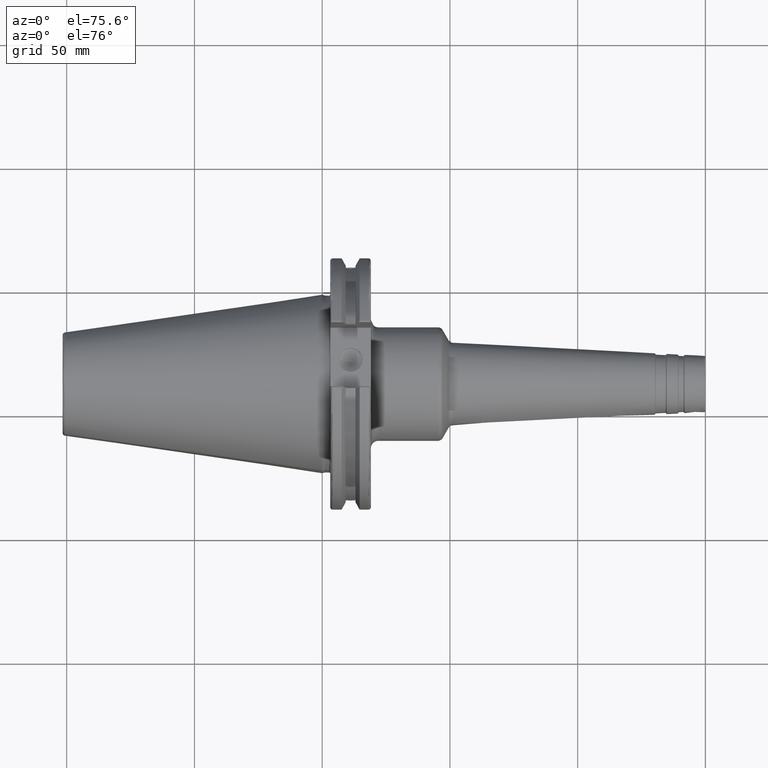
[diagram: clean part render]
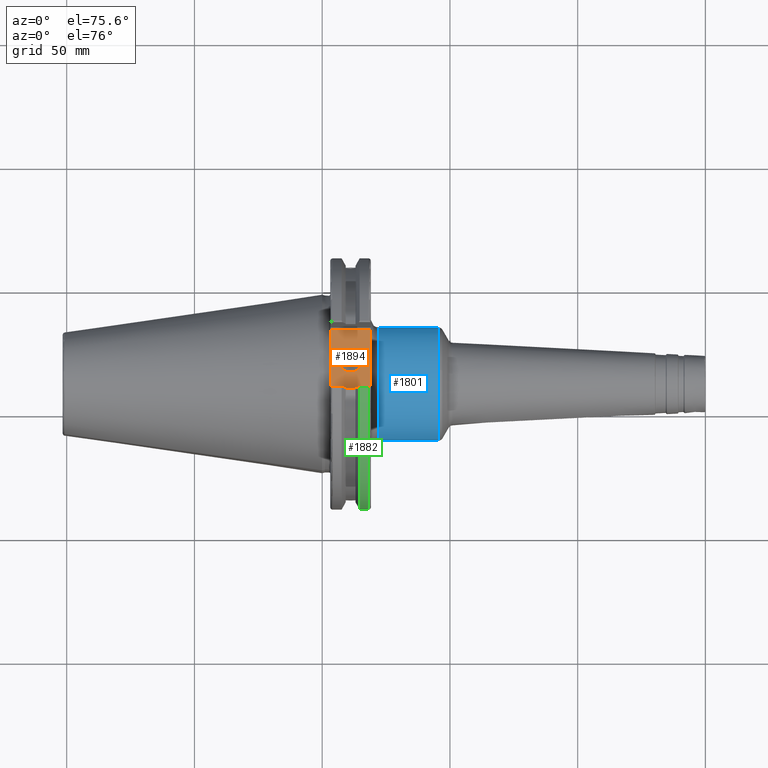
[diagram: same view with three faces highlighted in distinct colors, each labeled with its STEP entity id]
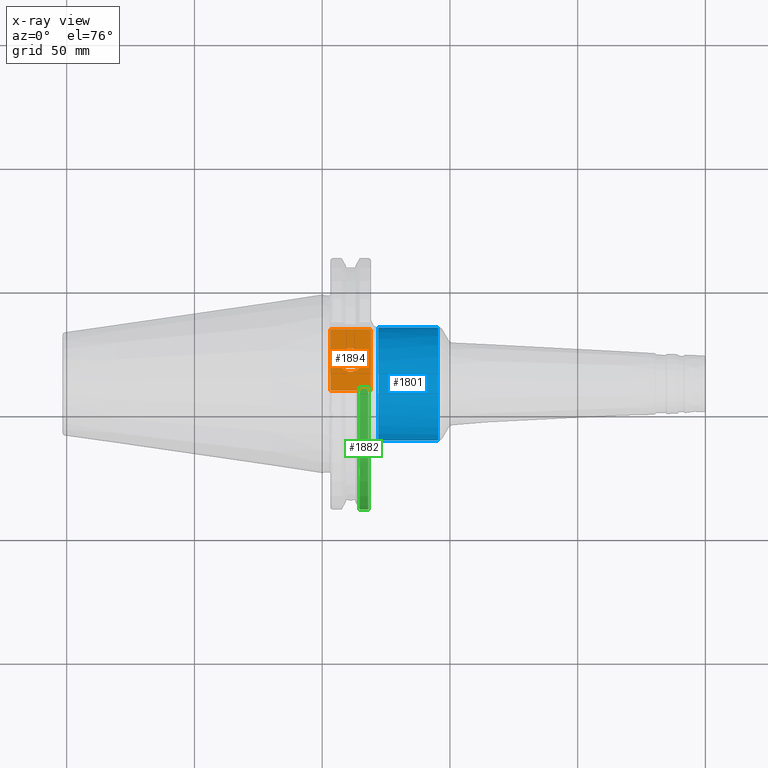
[diagram: x-ray of the same camera — body ghosted, the three highlighted faces saturated]
A machine part, auxiliary view with three faces highlighted in distinct colors.
The next image is the same camera in x-ray (body ghosted, the three faces saturated) — at least one of them is partly hidden behind the body in this view.
Their STEP definitions:

[orange] entity #1894 — the highlighted planar face has unit normal (0, 0, 1).
#89=FACE_BOUND('',#607,.T.);
#124=PLANE('',#2144);
#161=LINE('',#2775,#264);
#214=LINE('',#3481,#317);
#242=LINE('',#3710,#345);
#244=LINE('',#3713,#347);
#264=VECTOR('',#2213,10.);
#317=VECTOR('',#2546,10.);
#345=VECTOR('',#2640,10.);
#347=VECTOR('',#2644,10.);
#482=FACE_OUTER_BOUND('',#606,.T.);
#606=EDGE_LOOP('',(#1740,#1741,#1742,#1743));
#607=EDGE_LOOP('',(#1744));
#732=CIRCLE('',#2136,4.7625);
#757=VERTEX_POINT('',#2772);
#758=VERTEX_POINT('',#2774);
#880=VERTEX_POINT('',#3478);
#881=VERTEX_POINT('',#3480);
#927=VERTEX_POINT('',#3749);
#952=EDGE_CURVE('',#757,#758,#161,.T.);
#1120=EDGE_CURVE('',#880,#881,#214,.T.);
#1183=EDGE_CURVE('',#758,#880,#242,.T.);
#1185=EDGE_CURVE('',#881,#757,#244,.T.);
#1200=EDGE_CURVE('',#927,#927,#732,.T.);
#1740=ORIENTED_EDGE('',*,*,#1183,.F.);
#1741=ORIENTED_EDGE('',*,*,#952,.F.);
#1742=ORIENTED_EDGE('',*,*,#1185,.F.);
#1743=ORIENTED_EDGE('',*,*,#1120,.F.);
#1744=ORIENTED_EDGE('',*,*,#1200,.T.);
#1894=ADVANCED_FACE('',(#482,#89),#124,.T.);
#2136=AXIS2_PLACEMENT_3D('',#3750,#2679,#2680);
#2144=AXIS2_PLACEMENT_3D('',#3759,#2696,#2697);
#2213=DIRECTION('',(0.,-1.,0.));
#2546=DIRECTION('',(0.,1.,0.));
#2640=DIRECTION('',(-1.,1.31581988103722E-16,0.));
#2644=DIRECTION('',(1.,0.,0.));
#2679=DIRECTION('center_axis',(0.,0.,-1.));
#2680=DIRECTION('ref_axis',(1.,0.,0.));
#2696=DIRECTION('center_axis',(0.,0.,1.));
#2697=DIRECTION('ref_axis',(1.,0.,0.));
#2772=CARTESIAN_POINT('',(19.05,12.45,37.719));
#2774=CARTESIAN_POINT('',(19.05,-12.45,37.719));
#2775=CARTESIAN_POINT('',(19.05,0.,37.719));
#3478=CARTESIAN_POINT('',(3.175,-12.45,37.719));
#3480=CARTESIAN_POINT('',(3.175,12.45,37.719));
#3481=CARTESIAN_POINT('',(3.175,24.60625,37.719));
#3710=CARTESIAN_POINT('',(10.63125,-12.45,37.719));
#3713=CARTESIAN_POINT('',(19.06875,12.45,37.719));
#3749=CARTESIAN_POINT('',(6.3716,-5.83238038093927E-16,37.719));
#3750=CARTESIAN_POINT('Origin',(11.1341,0.,37.719));
#3759=CARTESIAN_POINT('Origin',(18.0875,0.,37.719));

[blue] entity #1801 — the highlighted cylindrical surface (bore or boss wall) has radius 22.25 mm, axis along (1, 0, 0).
#128=CYLINDRICAL_SURFACE('',#1942,22.25);
#158=LINE('',#2758,#261);
#261=VECTOR('',#2196,22.25);
#389=FACE_OUTER_BOUND('',#495,.T.);
#495=EDGE_LOOP('',(#1237,#1238,#1239,#1240,#1241,#1242));
#627=CIRCLE('',#1940,22.25);
#628=CIRCLE('',#1941,22.25);
#629=CIRCLE('',#1943,22.25);
#630=CIRCLE('',#1944,22.25);
#749=VERTEX_POINT('',#2751);
#750=VERTEX_POINT('',#2753);
#751=VERTEX_POINT('',#2757);
#752=VERTEX_POINT('',#2759);
#942=EDGE_CURVE('',#749,#750,#627,.T.);
#943=EDGE_CURVE('',#750,#749,#628,.T.);
#944=EDGE_CURVE('',#750,#751,#158,.T.);
#945=EDGE_CURVE('',#752,#751,#629,.T.);
#946=EDGE_CURVE('',#751,#752,#630,.T.);
#1237=ORIENTED_EDGE('',*,*,#943,.F.);
#1238=ORIENTED_EDGE('',*,*,#944,.T.);
#1239=ORIENTED_EDGE('',*,*,#945,.F.);
#1240=ORIENTED_EDGE('',*,*,#946,.F.);
#1241=ORIENTED_EDGE('',*,*,#944,.F.);
#1242=ORIENTED_EDGE('',*,*,#942,.F.);
#1801=ADVANCED_FACE('',(#389),#128,.T.);
#1940=AXIS2_PLACEMENT_3D('',#2754,#2190,#2191);
#1941=AXIS2_PLACEMENT_3D('',#2755,#2192,#2193);
#1942=AXIS2_PLACEMENT_3D('',#2756,#2194,#2195);
#1943=AXIS2_PLACEMENT_3D('',#2760,#2197,#2198);
#1944=AXIS2_PLACEMENT_3D('',#2761,#2199,#2200);
#2190=DIRECTION('center_axis',(1.,0.,0.));
#2191=DIRECTION('ref_axis',(0.,-1.,1.83697019872103E-16));
#2192=DIRECTION('center_axis',(1.,0.,0.));
#2193=DIRECTION('ref_axis',(0.,-1.,1.83697019872103E-16));
#2194=DIRECTION('center_axis',(1.,0.,0.));
#2195=DIRECTION('ref_axis',(0.,1.,0.));
#2196=DIRECTION('',(-1.,0.,0.));
#2197=DIRECTION('center_axis',(-1.,0.,0.));
#2198=DIRECTION('ref_axis',(0.,-1.,-1.22464679914735E-16));
#2199=DIRECTION('center_axis',(-1.,0.,0.));
#2200=DIRECTION('ref_axis',(0.,-1.,-1.22464679914735E-16));
#2751=CARTESIAN_POINT('',(45.3758734809069,-2.72483912810286E-15,22.25));
#2753=CARTESIAN_POINT('',(45.3758734809069,-22.25,-2.72483912810286E-15));
#2754=CARTESIAN_POINT('Origin',(45.3758734809069,0.,0.));
#2755=CARTESIAN_POINT('Origin',(45.3758734809069,0.,0.));
#2756=CARTESIAN_POINT('Origin',(32.7902870096431,0.,0.));
#2757=CARTESIAN_POINT('',(22.05,-22.25,-2.72483912810286E-15));
#2758=CARTESIAN_POINT('',(32.7902870096431,-22.25,-2.72483912810286E-15));
#2759=CARTESIAN_POINT('',(22.05,-2.72483912810286E-15,-22.25));
#2760=CARTESIAN_POINT('Origin',(22.05,0.,0.));
#2761=CARTESIAN_POINT('Origin',(22.05,0.,0.));

[green] entity #1882 — the highlighted cylindrical surface (partial cylindrical patch) has radius 49.2125 mm, axis along (1, 0, 0).
#149=CYLINDRICAL_SURFACE('',#2126,49.2125);
#250=LINE('',#3728,#353);
#251=LINE('',#3730,#354);
#353=VECTOR('',#2654,10.);
#354=VECTOR('',#2657,10.);
#470=FACE_OUTER_BOUND('',#594,.T.);
#594=EDGE_LOOP('',(#1688,#1689,#1690,#1691));
#692=CIRCLE('',#2043,49.2125);
#720=CIRCLE('',#2098,49.2125);
#834=VERTEX_POINT('',#3196);
#835=VERTEX_POINT('',#3200);
#899=VERTEX_POINT('',#3571);
#900=VERTEX_POINT('',#3580);
#1057=EDGE_CURVE('',#835,#834,#692,.T.);
#1146=EDGE_CURVE('',#899,#900,#720,.T.);
#1192=EDGE_CURVE('',#900,#834,#250,.T.);
#1193=EDGE_CURVE('',#835,#899,#251,.T.);
#1688=ORIENTED_EDGE('',*,*,#1146,.F.);
#1689=ORIENTED_EDGE('',*,*,#1193,.F.);
#1690=ORIENTED_EDGE('',*,*,#1057,.T.);
#1691=ORIENTED_EDGE('',*,*,#1192,.F.);
#1882=ADVANCED_FACE('',(#470),#149,.T.);
#2043=AXIS2_PLACEMENT_3D('',#3201,#2430,#2431);
#2098=AXIS2_PLACEMENT_3D('',#3581,#2575,#2576);
#2126=AXIS2_PLACEMENT_3D('',#3729,#2655,#2656);
#2430=DIRECTION('center_axis',(1.,0.,0.));
#2431=DIRECTION('ref_axis',(0.,0.,-1.));
#2575=DIRECTION('center_axis',(1.,0.,0.));
#2576=DIRECTION('ref_axis',(0.,-1.,1.60812264967664E-16));
#2654=DIRECTION('',(-1.,0.,0.));
#2655=DIRECTION('center_axis',(1.,0.,0.));
#2656=DIRECTION('ref_axis',(0.,-1.,1.22464679914735E-16));
#2657=DIRECTION('',(1.,0.,0.));
#3196=CARTESIAN_POINT('',(14.6602090340487,-13.4317035994433,-47.3440544806494));
#3200=CARTESIAN_POINT('',(14.6602090340487,-13.4317035994433,47.3440544806494));
#3201=CARTESIAN_POINT('Origin',(14.6602090340487,0.,0.));
#3571=CARTESIAN_POINT('',(18.05,-13.4317035994433,47.3440544806494));
#3580=CARTESIAN_POINT('',(18.05,-13.4317035994433,-47.3440544806494));
#3581=CARTESIAN_POINT('Origin',(18.05,0.,0.));
#3728=CARTESIAN_POINT('',(16.8551045170244,-13.4317035994433,-47.3440544806494));
#3729=CARTESIAN_POINT('Origin',(16.8551045170244,0.,0.));
#3730=CARTESIAN_POINT('',(16.8551045170244,-13.4317035994433,47.3440544806494));